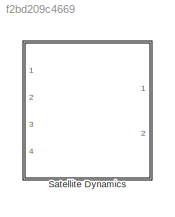
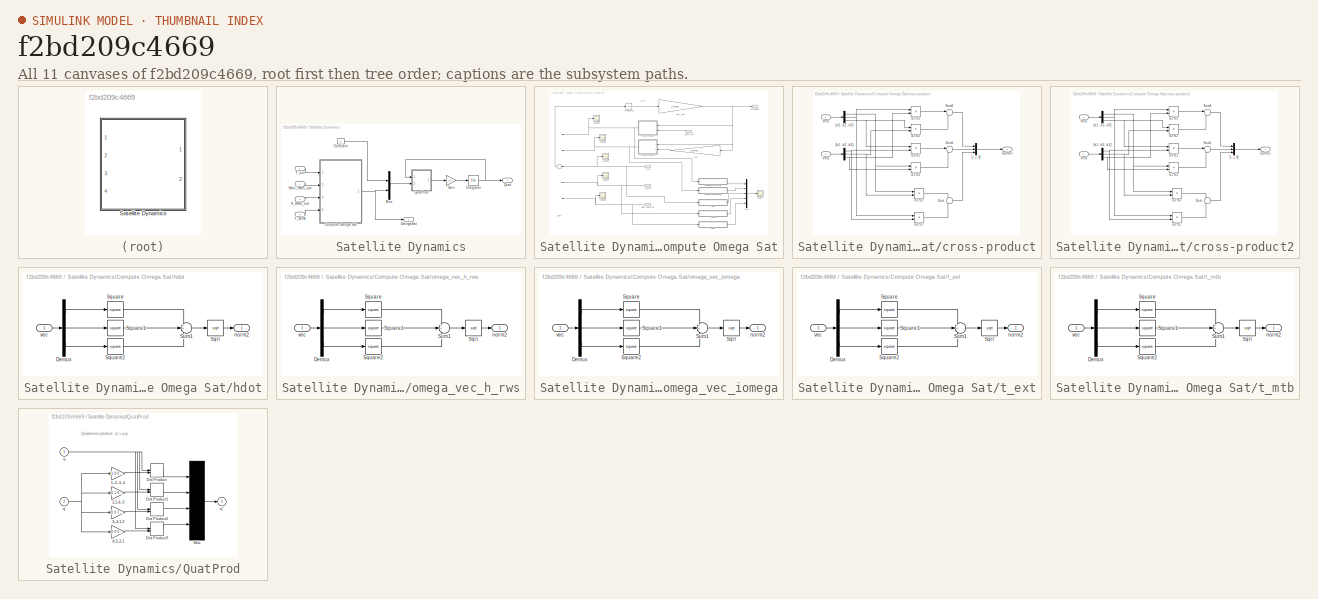
[diagram: thumbnail index - all 11 canvases of the model, root first then tree order]
MODEL slx_f2bd209c4669
KIND library
CONFIG AbsTol = auto
CONFIG EnableMultiTasking = off
CONFIG FixedStep = auto
CONFIG MaxStep = auto
CONFIG MinStep = auto
CONFIG RelTol = 1e-3
CONFIG SampleTimeConstraint = Unconstrained
CONFIG Solver = ode45
CONFIG SolverName = ode45
CONFIG StartTime = 0.0
CONFIG StopTime = 10.0
BLOCK [SubSystem] Satellite Dynamics
  Ports = [4, 2]
  RequestExecContextInheritance = off
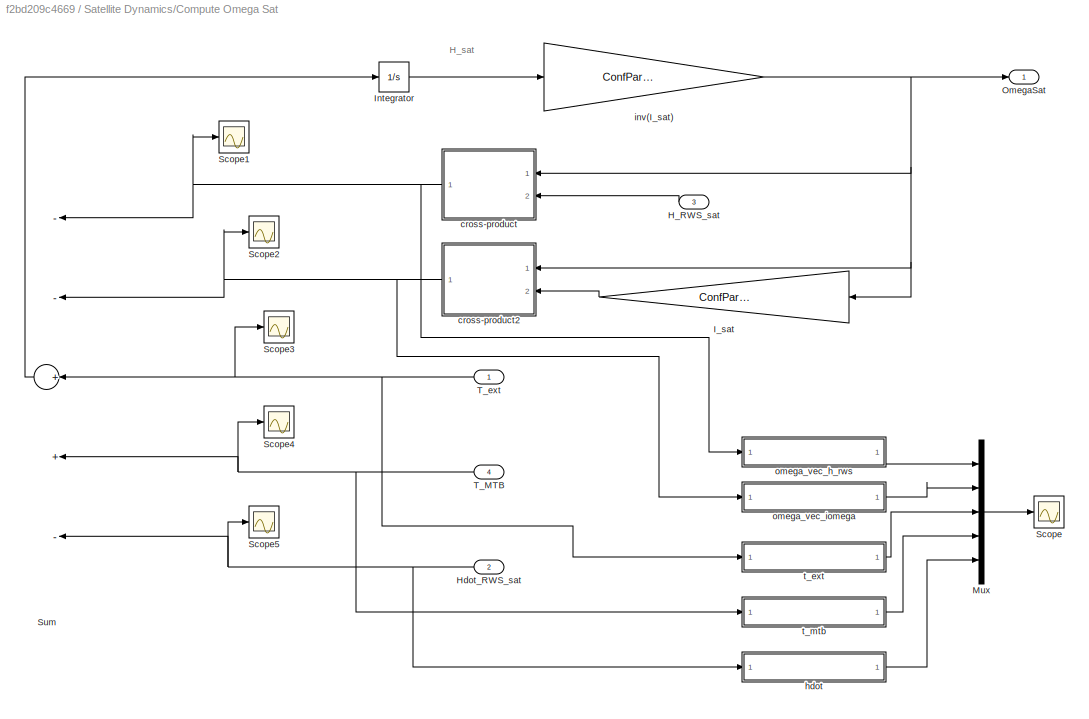
BLOCK [SubSystem] Satellite Dynamics/Compute Omega Sat
  Ports = [4, 1]
  RequestExecContextInheritance = off
BLOCK [Inport] Satellite Dynamics/Compute Omega Sat/H_RWS_sat
  IconDisplay = Port number
  Port = 3
BLOCK [Inport] Satellite Dynamics/Compute Omega Sat/Hdot_RWS_sat
  IconDisplay = Port number
  Port = 2
BLOCK [Gain] Satellite Dynamics/Compute Omega Sat/I_sat
  Gain = ConfParam.confSatFeatures.I_sat
  Multiplication = Matrix(K*u)
  OutDataTypeStr = Inherit: Inherit via internal rule
  ParamDataTypeStr = Inherit: Inherit via internal rule
  SaturateOnIntegerOverflow = off
BLOCK [Integrator] Satellite Dynamics/Compute Omega Sat/Integrator
  InitialCondition = ConfParam.confSatFeatures.I_sat*ConfParam.confSatDyn.InitOmega_sat
  Ports = [1, 1]
BLOCK [Mux] Satellite Dynamics/Compute Omega Sat/Mux
  DisplayOption = bar
  Inputs = 5
  Ports = [5, 1]
BLOCK [Outport] Satellite Dynamics/Compute Omega Sat/OmegaSat
  IconDisplay = Port number
BLOCK [Scope] Satellite Dynamics/Compute Omega Sat/Scope
  Floating = off
  NumInputPorts = 1
  Ports = [1]
  ScopeSpecificationString = Simulink.scopes.TimeScopeBlockCfg('CurrentConfiguration', extmgr.ConfigurationSet(extmgr.Configuration('Core','General UI',true),extmgr.Configuration('Core','Source UI',true),extmgr.Configuration('Sources','WiredSimulink',true),extmgr.Configuration('Visuals','Time Domain',true,'SerializedDisplays',{struct('MinYLimReal','-0.00008','MaxYLimReal','0.00068','YLabelReal','','MinYLimMag','0.00000','MaxY...<+1405ch>
BLOCK [Scope] Satellite Dynamics/Compute Omega Sat/Scope1
  Floating = off
  NumInputPorts = 1
  Ports = [1]
  ScopeSpecificationString = Simulink.scopes.TimeScopeBlockCfg('CurrentConfiguration', extmgr.ConfigurationSet(extmgr.Configuration('Core','General UI',true),extmgr.Configuration('Core','Source UI',true),extmgr.Configuration('Sources','WiredSimulink',true,'DataLoggingVariableName','ScopeData1'),extmgr.Configuration('Visuals','Time Domain',true,'SerializedDisplays',{struct('MinYLimReal','-0.000048','MaxYLimReal','0.00005','YLa...<+1442ch>
BLOCK [Scope] Satellite Dynamics/Compute Omega Sat/Scope2
  Floating = off
  NumInputPorts = 1
  Ports = [1]
  ScopeSpecificationString = Simulink.scopes.TimeScopeBlockCfg('CurrentConfiguration', extmgr.ConfigurationSet(extmgr.Configuration('Core','General UI',true),extmgr.Configuration('Core','Source UI',true),extmgr.Configuration('Sources','WiredSimulink',true,'DataLoggingVariableName','ScopeData2'),extmgr.Configuration('Visuals','Time Domain',true,'SerializedDisplays',{struct('MinYLimReal','-0.00009','MaxYLimReal','0.00009','YLab...<+1441ch>
BLOCK [Scope] Satellite Dynamics/Compute Omega Sat/Scope3
  Floating = off
  NumInputPorts = 1
  Ports = [1]
  ScopeSpecificationString = Simulink.scopes.TimeScopeBlockCfg('CurrentConfiguration', extmgr.ConfigurationSet(extmgr.Configuration('Core','General UI',true),extmgr.Configuration('Core','Source UI',true),extmgr.Configuration('Sources','WiredSimulink',true,'DataLoggingVariableName','ScopeData3'),extmgr.Configuration('Visuals','Time Domain',true,'SerializedDisplays',{struct('MinYLimReal','-0.000007','MaxYLimReal','0.000007','YL...<+1422ch>
BLOCK [Scope] Satellite Dynamics/Compute Omega Sat/Scope4
  Floating = off
  NumInputPorts = 1
  Ports = [1]
  ScopeSpecificationString = Simulink.scopes.TimeScopeBlockCfg('CurrentConfiguration', extmgr.ConfigurationSet(extmgr.Configuration('Core','General UI',true),extmgr.Configuration('Core','Source UI',true),extmgr.Configuration('Sources','WiredSimulink',true,'DataLoggingVariableName','ScopeData4'),extmgr.Configuration('Visuals','Time Domain',true,'SerializedDisplays',{struct('MinYLimReal','-0.00001','MaxYLimReal','0.00001','YLab...<+1416ch>
BLOCK [Scope] Satellite Dynamics/Compute Omega Sat/Scope5
  Floating = off
  NumInputPorts = 1
  Ports = [1]
  ScopeSpecificationString = Simulink.scopes.TimeScopeBlockCfg('CurrentConfiguration', extmgr.ConfigurationSet(extmgr.Configuration('Core','General UI',true),extmgr.Configuration('Core','Source UI',true),extmgr.Configuration('Sources','WiredSimulink',true,'DataLoggingVariableName','ScopeData5'),extmgr.Configuration('Visuals','Time Domain',true,'SerializedDisplays',{struct('MinYLimReal','-0.00075','MaxYLimReal','0.00075','YLab...<+1458ch>
BLOCK [Sum] Satellite Dynamics/Compute Omega Sat/Sum
  InputSameDT = off
  Inputs = --++-
  OutDataTypeStr = Inherit: Inherit via internal rule
  Ports = [5, 1]
  SaturateOnIntegerOverflow = off
BLOCK [Inport] Satellite Dynamics/Compute Omega Sat/T_MTB
  IconDisplay = Port number
  Port = 4
BLOCK [Inport] Satellite Dynamics/Compute Omega Sat/T_ext
  IconDisplay = Port number
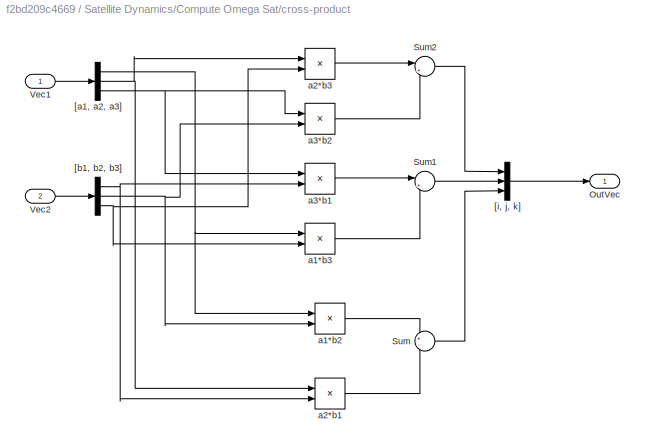
BLOCK [SubSystem] Satellite Dynamics/Compute Omega Sat/cross-product
  Ports = [2, 1]
  RequestExecContextInheritance = off
BLOCK [Outport] Satellite Dynamics/Compute Omega Sat/cross-product/OutVec
  IconDisplay = Port number
BLOCK [Sum] Satellite Dynamics/Compute Omega Sat/cross-product/Sum
  IconShape = round
  InputSameDT = off
  Inputs = +-
  OutDataTypeStr = Inherit: Inherit via internal rule
  Ports = [2, 1]
  SaturateOnIntegerOverflow = off
BLOCK [Sum] Satellite Dynamics/Compute Omega Sat/cross-product/Sum1
  IconShape = round
  InputSameDT = off
  Inputs = |+-
  OutDataTypeStr = Inherit: Inherit via internal rule
  Ports = [2, 1]
  SaturateOnIntegerOverflow = off
BLOCK [Sum] Satellite Dynamics/Compute Omega Sat/cross-product/Sum2
  IconShape = round
  InputSameDT = off
  Inputs = |+-
  OutDataTypeStr = Inherit: Inherit via internal rule
  Ports = [2, 1]
  SaturateOnIntegerOverflow = off
BLOCK [Inport] Satellite Dynamics/Compute Omega Sat/cross-product/Vec1
  IconDisplay = Port number
BLOCK [Inport] Satellite Dynamics/Compute Omega Sat/cross-product/Vec2
  IconDisplay = Port number
  Port = 2
BLOCK [Demux] Satellite Dynamics/Compute Omega Sat/cross-product/[a1, a2, a3]
  DisplayOption = bar
  Outputs = 3
  Ports = [1, 3]
BLOCK [Demux] Satellite Dynamics/Compute Omega Sat/cross-product/[b1, b2, b3]
  DisplayOption = bar
  Outputs = 3
  Ports = [1, 3]
BLOCK [Mux] Satellite Dynamics/Compute Omega Sat/cross-product/[i, j, k]
  DisplayOption = bar
  Inputs = 3
  Ports = [3, 1]
BLOCK [Product] Satellite Dynamics/Compute Omega Sat/cross-product/a1*b2
  InputSameDT = off
  OutDataTypeStr = Inherit: Inherit via internal rule
  Ports = [2, 1]
  RndMeth = Floor
  SaturateOnIntegerOverflow = off
BLOCK [Product] Satellite Dynamics/Compute Omega Sat/cross-product/a1*b3
  InputSameDT = off
  OutDataTypeStr = Inherit: Inherit via internal rule
  Ports = [2, 1]
  RndMeth = Floor
  SaturateOnIntegerOverflow = off
BLOCK [Product] Satellite Dynamics/Compute Omega Sat/cross-product/a2*b1
  InputSameDT = off
  OutDataTypeStr = Inherit: Inherit via internal rule
  Ports = [2, 1]
  RndMeth = Floor
  SaturateOnIntegerOverflow = off
BLOCK [Product] Satellite Dynamics/Compute Omega Sat/cross-product/a2*b3
  InputSameDT = off
  OutDataTypeStr = Inherit: Inherit via internal rule
  Ports = [2, 1]
  RndMeth = Floor
  SaturateOnIntegerOverflow = off
BLOCK [Product] Satellite Dynamics/Compute Omega Sat/cross-product/a3*b1
  InputSameDT = off
  OutDataTypeStr = Inherit: Inherit via internal rule
  Ports = [2, 1]
  RndMeth = Floor
  SaturateOnIntegerOverflow = off
BLOCK [Product] Satellite Dynamics/Compute Omega Sat/cross-product/a3*b2
  InputSameDT = off
  OutDataTypeStr = Inherit: Inherit via internal rule
  Ports = [2, 1]
  RndMeth = Floor
  SaturateOnIntegerOverflow = off
BLOCK [SubSystem] Satellite Dynamics/Compute Omega Sat/cross-product2
  Ports = [2, 1]
  RequestExecContextInheritance = off
BLOCK [Outport] Satellite Dynamics/Compute Omega Sat/cross-product2/OutVec
  IconDisplay = Port number
BLOCK [Sum] Satellite Dynamics/Compute Omega Sat/cross-product2/Sum
  IconShape = round
  InputSameDT = off
  Inputs = +-
  OutDataTypeStr = Inherit: Inherit via internal rule
  Ports = [2, 1]
  SaturateOnIntegerOverflow = off
BLOCK [Sum] Satellite Dynamics/Compute Omega Sat/cross-product2/Sum1
  IconShape = round
  InputSameDT = off
  Inputs = |+-
  OutDataTypeStr = Inherit: Inherit via internal rule
  Ports = [2, 1]
  SaturateOnIntegerOverflow = off
BLOCK [Sum] Satellite Dynamics/Compute Omega Sat/cross-product2/Sum2
  IconShape = round
  InputSameDT = off
  Inputs = |+-
  OutDataTypeStr = Inherit: Inherit via internal rule
  Ports = [2, 1]
  SaturateOnIntegerOverflow = off
BLOCK [Inport] Satellite Dynamics/Compute Omega Sat/cross-product2/Vec1
  IconDisplay = Port number
BLOCK [Inport] Satellite Dynamics/Compute Omega Sat/cross-product2/Vec2
  IconDisplay = Port number
  Port = 2
BLOCK [Demux] Satellite Dynamics/Compute Omega Sat/cross-product2/[a1, a2, a3]
  DisplayOption = bar
  Outputs = 3
  Ports = [1, 3]
BLOCK [Demux] Satellite Dynamics/Compute Omega Sat/cross-product2/[b1, b2, b3]
  DisplayOption = bar
  Outputs = 3
  Ports = [1, 3]
BLOCK [Mux] Satellite Dynamics/Compute Omega Sat/cross-product2/[i, j, k]
  DisplayOption = bar
  Inputs = 3
  Ports = [3, 1]
BLOCK [Product] Satellite Dynamics/Compute Omega Sat/cross-product2/a1*b2
  InputSameDT = off
  OutDataTypeStr = Inherit: Inherit via internal rule
  Ports = [2, 1]
  RndMeth = Floor
  SaturateOnIntegerOverflow = off
BLOCK [Product] Satellite Dynamics/Compute Omega Sat/cross-product2/a1*b3
  InputSameDT = off
  OutDataTypeStr = Inherit: Inherit via internal rule
  Ports = [2, 1]
  RndMeth = Floor
  SaturateOnIntegerOverflow = off
BLOCK [Product] Satellite Dynamics/Compute Omega Sat/cross-product2/a2*b1
  InputSameDT = off
  OutDataTypeStr = Inherit: Inherit via internal rule
  Ports = [2, 1]
  RndMeth = Floor
  SaturateOnIntegerOverflow = off
BLOCK [Product] Satellite Dynamics/Compute Omega Sat/cross-product2/a2*b3
  InputSameDT = off
  OutDataTypeStr = Inherit: Inherit via internal rule
  Ports = [2, 1]
  RndMeth = Floor
  SaturateOnIntegerOverflow = off
BLOCK [Product] Satellite Dynamics/Compute Omega Sat/cross-product2/a3*b1
  InputSameDT = off
  OutDataTypeStr = Inherit: Inherit via internal rule
  Ports = [2, 1]
  RndMeth = Floor
  SaturateOnIntegerOverflow = off
BLOCK [Product] Satellite Dynamics/Compute Omega Sat/cross-product2/a3*b2
  InputSameDT = off
  OutDataTypeStr = Inherit: Inherit via internal rule
  Ports = [2, 1]
  RndMeth = Floor
  SaturateOnIntegerOverflow = off
BLOCK [SubSystem] Satellite Dynamics/Compute Omega Sat/hdot
  Ports = [1, 1]
  RequestExecContextInheritance = off
BLOCK [Demux] Satellite Dynamics/Compute Omega Sat/hdot/Demux
  DisplayOption = bar
  Outputs = 3
  Ports = [1, 3]
BLOCK [Sqrt] Satellite Dynamics/Compute Omega Sat/hdot/Sqrt
BLOCK [Math] Satellite Dynamics/Compute Omega Sat/hdot/Square
  Operator = square
  Ports = [1, 1]
BLOCK [Math] Satellite Dynamics/Compute Omega Sat/hdot/Square1
  Operator = square
  Ports = [1, 1]
BLOCK [Math] Satellite Dynamics/Compute Omega Sat/hdot/Square2
  Operator = square
  Ports = [1, 1]
BLOCK [Sum] Satellite Dynamics/Compute Omega Sat/hdot/Sum1
  IconShape = round
  InputSameDT = off
  Inputs = 3
  OutDataTypeStr = Inherit: Inherit via internal rule
  Ports = [3, 1]
  SaturateOnIntegerOverflow = off
BLOCK [Outport] Satellite Dynamics/Compute Omega Sat/hdot/norm2
  IconDisplay = Port number
BLOCK [Inport] Satellite Dynamics/Compute Omega Sat/hdot/vec
  IconDisplay = Port number
BLOCK [Gain] Satellite Dynamics/Compute Omega Sat/inv(I_sat)
  Gain = ConfParam.confSatDyn.invI_sat
  Multiplication = Matrix(K*u)
  OutDataTypeStr = Inherit: Inherit via internal rule
  ParamDataTypeStr = Inherit: Inherit via internal rule
  SaturateOnIntegerOverflow = off
BLOCK [SubSystem] Satellite Dynamics/Compute Omega Sat/omega_vec_h_rws
  Ports = [1, 1]
  RequestExecContextInheritance = off
BLOCK [Demux] Satellite Dynamics/Compute Omega Sat/omega_vec_h_rws/Demux
  DisplayOption = bar
  Outputs = 3
  Ports = [1, 3]
BLOCK [Sqrt] Satellite Dynamics/Compute Omega Sat/omega_vec_h_rws/Sqrt
BLOCK [Math] Satellite Dynamics/Compute Omega Sat/omega_vec_h_rws/Square
  Operator = square
  Ports = [1, 1]
BLOCK [Math] Satellite Dynamics/Compute Omega Sat/omega_vec_h_rws/Square1
  Operator = square
  Ports = [1, 1]
BLOCK [Math] Satellite Dynamics/Compute Omega Sat/omega_vec_h_rws/Square2
  Operator = square
  Ports = [1, 1]
BLOCK [Sum] Satellite Dynamics/Compute Omega Sat/omega_vec_h_rws/Sum1
  IconShape = round
  InputSameDT = off
  Inputs = 3
  OutDataTypeStr = Inherit: Inherit via internal rule
  Ports = [3, 1]
  SaturateOnIntegerOverflow = off
BLOCK [Outport] Satellite Dynamics/Compute Omega Sat/omega_vec_h_rws/norm2
  IconDisplay = Port number
BLOCK [Inport] Satellite Dynamics/Compute Omega Sat/omega_vec_h_rws/vec
  IconDisplay = Port number
BLOCK [SubSystem] Satellite Dynamics/Compute Omega Sat/omega_vec_iomega
  Ports = [1, 1]
  RequestExecContextInheritance = off
BLOCK [Demux] Satellite Dynamics/Compute Omega Sat/omega_vec_iomega/Demux
  DisplayOption = bar
  Outputs = 3
  Ports = [1, 3]
BLOCK [Sqrt] Satellite Dynamics/Compute Omega Sat/omega_vec_iomega/Sqrt
BLOCK [Math] Satellite Dynamics/Compute Omega Sat/omega_vec_iomega/Square
  Operator = square
  Ports = [1, 1]
BLOCK [Math] Satellite Dynamics/Compute Omega Sat/omega_vec_iomega/Square1
  Operator = square
  Ports = [1, 1]
BLOCK [Math] Satellite Dynamics/Compute Omega Sat/omega_vec_iomega/Square2
  Operator = square
  Ports = [1, 1]
BLOCK [Sum] Satellite Dynamics/Compute Omega Sat/omega_vec_iomega/Sum1
  IconShape = round
  InputSameDT = off
  Inputs = 3
  OutDataTypeStr = Inherit: Inherit via internal rule
  Ports = [3, 1]
  SaturateOnIntegerOverflow = off
BLOCK [Outport] Satellite Dynamics/Compute Omega Sat/omega_vec_iomega/norm2
  IconDisplay = Port number
BLOCK [Inport] Satellite Dynamics/Compute Omega Sat/omega_vec_iomega/vec
  IconDisplay = Port number
BLOCK [SubSystem] Satellite Dynamics/Compute Omega Sat/t_ext
  Ports = [1, 1]
  RequestExecContextInheritance = off
BLOCK [Demux] Satellite Dynamics/Compute Omega Sat/t_ext/Demux
  DisplayOption = bar
  Outputs = 3
  Ports = [1, 3]
BLOCK [Sqrt] Satellite Dynamics/Compute Omega Sat/t_ext/Sqrt
BLOCK [Math] Satellite Dynamics/Compute Omega Sat/t_ext/Square
  Operator = square
  Ports = [1, 1]
BLOCK [Math] Satellite Dynamics/Compute Omega Sat/t_ext/Square1
  Operator = square
  Ports = [1, 1]
BLOCK [Math] Satellite Dynamics/Compute Omega Sat/t_ext/Square2
  Operator = square
  Ports = [1, 1]
BLOCK [Sum] Satellite Dynamics/Compute Omega Sat/t_ext/Sum1
  IconShape = round
  InputSameDT = off
  Inputs = 3
  OutDataTypeStr = Inherit: Inherit via internal rule
  Ports = [3, 1]
  SaturateOnIntegerOverflow = off
BLOCK [Outport] Satellite Dynamics/Compute Omega Sat/t_ext/norm2
  IconDisplay = Port number
BLOCK [Inport] Satellite Dynamics/Compute Omega Sat/t_ext/vec
  IconDisplay = Port number
BLOCK [SubSystem] Satellite Dynamics/Compute Omega Sat/t_mtb
  Ports = [1, 1]
  RequestExecContextInheritance = off
BLOCK [Demux] Satellite Dynamics/Compute Omega Sat/t_mtb/Demux
  DisplayOption = bar
  Outputs = 3
  Ports = [1, 3]
BLOCK [Sqrt] Satellite Dynamics/Compute Omega Sat/t_mtb/Sqrt
BLOCK [Math] Satellite Dynamics/Compute Omega Sat/t_mtb/Square
  Operator = square
  Ports = [1, 1]
BLOCK [Math] Satellite Dynamics/Compute Omega Sat/t_mtb/Square1
  Operator = square
  Ports = [1, 1]
BLOCK [Math] Satellite Dynamics/Compute Omega Sat/t_mtb/Square2
  Operator = square
  Ports = [1, 1]
BLOCK [Sum] Satellite Dynamics/Compute Omega Sat/t_mtb/Sum1
  IconShape = round
  InputSameDT = off
  Inputs = 3
  OutDataTypeStr = Inherit: Inherit via internal rule
  Ports = [3, 1]
  SaturateOnIntegerOverflow = off
BLOCK [Outport] Satellite Dynamics/Compute Omega Sat/t_mtb/norm2
  IconDisplay = Port number
BLOCK [Inport] Satellite Dynamics/Compute Omega Sat/t_mtb/vec
  IconDisplay = Port number
BLOCK [Constant] Satellite Dynamics/Constant
  Value = 0
BLOCK [Gain] Satellite Dynamics/Gain
  Gain = 1/2
  OutDataTypeStr = Inherit: Inherit via internal rule
  ParamDataTypeStr = Inherit: Inherit via internal rule
  SaturateOnIntegerOverflow = off
BLOCK [Inport] Satellite Dynamics/H_RWS_sat
  IconDisplay = Port number
  Port = 3
BLOCK [Inport] Satellite Dynamics/Hdot_RWS_sat
  IconDisplay = Port number
  Port = 2
BLOCK [Integrator] Satellite Dynamics/Integrator
  InitialCondition = ConfParam.confSatDyn.InitQsat
  Ports = [1, 1]
BLOCK [Mux] Satellite Dynamics/Mux
  DisplayOption = bar
  Inputs = 2
  Ports = [2, 1]
BLOCK [Outport] Satellite Dynamics/OmegaSat
  IconDisplay = Port number
  Port = 2
BLOCK [Outport] Satellite Dynamics/Qsat
  IconDisplay = Port number
BLOCK [SubSystem] Satellite Dynamics/QuatProd
  Ports = [2, 1]
  RTWFcnNameOpts = Use subsystem name
  RTWFileNameOpts = Use subsystem name
  RTWSystemCode = Reusable function
  RequestExecContextInheritance = off
  TreatAsAtomicUnit = on
BLOCK [Gain] Satellite Dynamics/QuatProd/1,-2,-3,-4
  Gain = [1 0 0 0;0 -1 0 0;0 0 -1 0;0 0 0 -1]
  Multiplication = Matrix(K*u) (u vector)
BLOCK [Gain] Satellite Dynamics/QuatProd/2,1,4,-3
  Gain = [0 1 0 0 ; 1 0 0 0 ; 0 0 0 1 ; 0 0 -1 0]
  Multiplication = Matrix(K*u) (u vector)
BLOCK [Gain] Satellite Dynamics/QuatProd/3,-4,1,2
  Gain = [0 0 1 0 ; 0 0 0 -1 ; 1 0 0 0 ; 0 1 0 0]
  Multiplication = Matrix(K*u) (u vector)
BLOCK [Gain] Satellite Dynamics/QuatProd/4,3,-2,1
  Gain = [0 0 0 1;0 0 1 0 ; 0 -1 0 0 ; 1 0 0 0]
  Multiplication = Matrix(K*u) (u vector)
BLOCK [DotProduct] Satellite Dynamics/QuatProd/Dot Product
  OutDataTypeStr = Inherit: Inherit via internal rule
BLOCK [DotProduct] Satellite Dynamics/QuatProd/Dot Product1
  OutDataTypeStr = Inherit: Inherit via internal rule
BLOCK [DotProduct] Satellite Dynamics/QuatProd/Dot Product2
  OutDataTypeStr = Inherit: Inherit via internal rule
BLOCK [DotProduct] Satellite Dynamics/QuatProd/Dot Product3
  OutDataTypeStr = Inherit: Inherit via internal rule
BLOCK [Mux] Satellite Dynamics/QuatProd/Mux
  Ports = [4, 1]
BLOCK [Inport] Satellite Dynamics/QuatProd/q
  IconDisplay = Port number
  OutDataTypeStr = double
  PortDimensions = 4
BLOCK [Outport] Satellite Dynamics/QuatProd/q"
  IconDisplay = Port number
  InitialOutput = 0
  OutDataTypeStr = double
  PortDimensions = 4
BLOCK [Inport] Satellite Dynamics/QuatProd/q'
  IconDisplay = Port number
  OutDataTypeStr = double
  Port = 2
  PortDimensions = 4
BLOCK [Inport] Satellite Dynamics/T_MTB
  IconDisplay = Port number
  Port = 4
BLOCK [Inport] Satellite Dynamics/T_ext
  IconDisplay = Port number
ANNOTATION Satellite Dynamics/Compute Omega Sat: H_sat
ANNOTATION Satellite Dynamics/QuatProd: Quaternion product : q" = q.q'
LINE Satellite Dynamics/Compute Omega Sat/H_RWS_sat:1 -> Satellite Dynamics/Compute Omega Sat/cross-product:2
NET Satellite Dynamics/Compute Omega Sat/Hdot_RWS_sat:1 -> Satellite Dynamics/Compute Omega Sat/Scope5:1, Satellite Dynamics/Compute Omega Sat/Sum:5, Satellite Dynamics/Compute Omega Sat/hdot:1
LINE Satellite Dynamics/Compute Omega Sat/I_sat:1 -> Satellite Dynamics/Compute Omega Sat/cross-product2:2
LINE Satellite Dynamics/Compute Omega Sat/Integrator:1 -> Satellite Dynamics/Compute Omega Sat/inv(I_sat):1
LINE Satellite Dynamics/Compute Omega Sat/Mux:1 -> Satellite Dynamics/Compute Omega Sat/Scope:1
LINE Satellite Dynamics/Compute Omega Sat/Sum:1 -> Satellite Dynamics/Compute Omega Sat/Integrator:1
NET Satellite Dynamics/Compute Omega Sat/T_MTB:1 -> Satellite Dynamics/Compute Omega Sat/Scope4:1, Satellite Dynamics/Compute Omega Sat/Sum:4, Satellite Dynamics/Compute Omega Sat/t_mtb:1
NET Satellite Dynamics/Compute Omega Sat/T_ext:1 -> Satellite Dynamics/Compute Omega Sat/Scope3:1, Satellite Dynamics/Compute Omega Sat/Sum:3, Satellite Dynamics/Compute Omega Sat/t_ext:1
LINE Satellite Dynamics/Compute Omega Sat/cross-product/Sum1:1 -> Satellite Dynamics/Compute Omega Sat/cross-product/[i, j, k]:2
LINE Satellite Dynamics/Compute Omega Sat/cross-product/Sum2:1 -> Satellite Dynamics/Compute Omega Sat/cross-product/[i, j, k]:1
LINE Satellite Dynamics/Compute Omega Sat/cross-product/Sum:1 -> Satellite Dynamics/Compute Omega Sat/cross-product/[i, j, k]:3
LINE Satellite Dynamics/Compute Omega Sat/cross-product/Vec1:1 -> Satellite Dynamics/Compute Omega Sat/cross-product/[a1, a2, a3]:1
LINE Satellite Dynamics/Compute Omega Sat/cross-product/Vec2:1 -> Satellite Dynamics/Compute Omega Sat/cross-product/[b1, b2, b3]:1
NET Satellite Dynamics/Compute Omega Sat/cross-product/[a1, a2, a3]:1 -> Satellite Dynamics/Compute Omega Sat/cross-product/a1*b2:1, Satellite Dynamics/Compute Omega Sat/cross-product/a1*b3:1
NET Satellite Dynamics/Compute Omega Sat/cross-product/[a1, a2, a3]:2 -> Satellite Dynamics/Compute Omega Sat/cross-product/a2*b1:1, Satellite Dynamics/Compute Omega Sat/cross-product/a2*b3:1
NET Satellite Dynamics/Compute Omega Sat/cross-product/[a1, a2, a3]:3 -> Satellite Dynamics/Compute Omega Sat/cross-product/a3*b1:1, Satellite Dynamics/Compute Omega Sat/cross-product/a3*b2:1
NET Satellite Dynamics/Compute Omega Sat/cross-product/[b1, b2, b3]:1 -> Satellite Dynamics/Compute Omega Sat/cross-product/a2*b1:2, Satellite Dynamics/Compute Omega Sat/cross-product/a3*b1:2
NET Satellite Dynamics/Compute Omega Sat/cross-product/[b1, b2, b3]:2 -> Satellite Dynamics/Compute Omega Sat/cross-product/a1*b2:2, Satellite Dynamics/Compute Omega Sat/cross-product/a3*b2:2
NET Satellite Dynamics/Compute Omega Sat/cross-product/[b1, b2, b3]:3 -> Satellite Dynamics/Compute Omega Sat/cross-product/a1*b3:2, Satellite Dynamics/Compute Omega Sat/cross-product/a2*b3:2
LINE Satellite Dynamics/Compute Omega Sat/cross-product/[i, j, k]:1 -> Satellite Dynamics/Compute Omega Sat/cross-product/OutVec:1
LINE Satellite Dynamics/Compute Omega Sat/cross-product/a1*b2:1 -> Satellite Dynamics/Compute Omega Sat/cross-product/Sum:1
LINE Satellite Dynamics/Compute Omega Sat/cross-product/a1*b3:1 -> Satellite Dynamics/Compute Omega Sat/cross-product/Sum1:2
LINE Satellite Dynamics/Compute Omega Sat/cross-product/a2*b1:1 -> Satellite Dynamics/Compute Omega Sat/cross-product/Sum:2
LINE Satellite Dynamics/Compute Omega Sat/cross-product/a2*b3:1 -> Satellite Dynamics/Compute Omega Sat/cross-product/Sum2:1
LINE Satellite Dynamics/Compute Omega Sat/cross-product/a3*b1:1 -> Satellite Dynamics/Compute Omega Sat/cross-product/Sum1:1
LINE Satellite Dynamics/Compute Omega Sat/cross-product/a3*b2:1 -> Satellite Dynamics/Compute Omega Sat/cross-product/Sum2:2
LINE Satellite Dynamics/Compute Omega Sat/cross-product2/Sum1:1 -> Satellite Dynamics/Compute Omega Sat/cross-product2/[i, j, k]:2
LINE Satellite Dynamics/Compute Omega Sat/cross-product2/Sum2:1 -> Satellite Dynamics/Compute Omega Sat/cross-product2/[i, j, k]:1
LINE Satellite Dynamics/Compute Omega Sat/cross-product2/Sum:1 -> Satellite Dynamics/Compute Omega Sat/cross-product2/[i, j, k]:3
LINE Satellite Dynamics/Compute Omega Sat/cross-product2/Vec1:1 -> Satellite Dynamics/Compute Omega Sat/cross-product2/[a1, a2, a3]:1
LINE Satellite Dynamics/Compute Omega Sat/cross-product2/Vec2:1 -> Satellite Dynamics/Compute Omega Sat/cross-product2/[b1, b2, b3]:1
NET Satellite Dynamics/Compute Omega Sat/cross-product2/[a1, a2, a3]:1 -> Satellite Dynamics/Compute Omega Sat/cross-product2/a1*b2:1, Satellite Dynamics/Compute Omega Sat/cross-product2/a1*b3:1
NET Satellite Dynamics/Compute Omega Sat/cross-product2/[a1, a2, a3]:2 -> Satellite Dynamics/Compute Omega Sat/cross-product2/a2*b1:1, Satellite Dynamics/Compute Omega Sat/cross-product2/a2*b3:1
NET Satellite Dynamics/Compute Omega Sat/cross-product2/[a1, a2, a3]:3 -> Satellite Dynamics/Compute Omega Sat/cross-product2/a3*b1:1, Satellite Dynamics/Compute Omega Sat/cross-product2/a3*b2:1
NET Satellite Dynamics/Compute Omega Sat/cross-product2/[b1, b2, b3]:1 -> Satellite Dynamics/Compute Omega Sat/cross-product2/a2*b1:2, Satellite Dynamics/Compute Omega Sat/cross-product2/a3*b1:2
NET Satellite Dynamics/Compute Omega Sat/cross-product2/[b1, b2, b3]:2 -> Satellite Dynamics/Compute Omega Sat/cross-product2/a1*b2:2, Satellite Dynamics/Compute Omega Sat/cross-product2/a3*b2:2
NET Satellite Dynamics/Compute Omega Sat/cross-product2/[b1, b2, b3]:3 -> Satellite Dynamics/Compute Omega Sat/cross-product2/a1*b3:2, Satellite Dynamics/Compute Omega Sat/cross-product2/a2*b3:2
LINE Satellite Dynamics/Compute Omega Sat/cross-product2/[i, j, k]:1 -> Satellite Dynamics/Compute Omega Sat/cross-product2/OutVec:1
LINE Satellite Dynamics/Compute Omega Sat/cross-product2/a1*b2:1 -> Satellite Dynamics/Compute Omega Sat/cross-product2/Sum:1
LINE Satellite Dynamics/Compute Omega Sat/cross-product2/a1*b3:1 -> Satellite Dynamics/Compute Omega Sat/cross-product2/Sum1:2
LINE Satellite Dynamics/Compute Omega Sat/cross-product2/a2*b1:1 -> Satellite Dynamics/Compute Omega Sat/cross-product2/Sum:2
LINE Satellite Dynamics/Compute Omega Sat/cross-product2/a2*b3:1 -> Satellite Dynamics/Compute Omega Sat/cross-product2/Sum2:1
LINE Satellite Dynamics/Compute Omega Sat/cross-product2/a3*b1:1 -> Satellite Dynamics/Compute Omega Sat/cross-product2/Sum1:1
LINE Satellite Dynamics/Compute Omega Sat/cross-product2/a3*b2:1 -> Satellite Dynamics/Compute Omega Sat/cross-product2/Sum2:2
NET Satellite Dynamics/Compute Omega Sat/cross-product2:1 -> Satellite Dynamics/Compute Omega Sat/Scope2:1, Satellite Dynamics/Compute Omega Sat/Sum:2, Satellite Dynamics/Compute Omega Sat/omega_vec_iomega:1
NET Satellite Dynamics/Compute Omega Sat/cross-product:1 -> Satellite Dynamics/Compute Omega Sat/Scope1:1, Satellite Dynamics/Compute Omega Sat/Sum:1, Satellite Dynamics/Compute Omega Sat/omega_vec_h_rws:1
LINE Satellite Dynamics/Compute Omega Sat/hdot/Demux:1 -> Satellite Dynamics/Compute Omega Sat/hdot/Square:1
LINE Satellite Dynamics/Compute Omega Sat/hdot/Demux:2 -> Satellite Dynamics/Compute Omega Sat/hdot/Square1:1
LINE Satellite Dynamics/Compute Omega Sat/hdot/Demux:3 -> Satellite Dynamics/Compute Omega Sat/hdot/Square2:1
LINE Satellite Dynamics/Compute Omega Sat/hdot/Sqrt:1 -> Satellite Dynamics/Compute Omega Sat/hdot/norm2:1
LINE Satellite Dynamics/Compute Omega Sat/hdot/Square1:1 -> Satellite Dynamics/Compute Omega Sat/hdot/Sum1:2
LINE Satellite Dynamics/Compute Omega Sat/hdot/Square2:1 -> Satellite Dynamics/Compute Omega Sat/hdot/Sum1:3
LINE Satellite Dynamics/Compute Omega Sat/hdot/Square:1 -> Satellite Dynamics/Compute Omega Sat/hdot/Sum1:1
LINE Satellite Dynamics/Compute Omega Sat/hdot/Sum1:1 -> Satellite Dynamics/Compute Omega Sat/hdot/Sqrt:1
LINE Satellite Dynamics/Compute Omega Sat/hdot/vec:1 -> Satellite Dynamics/Compute Omega Sat/hdot/Demux:1
LINE Satellite Dynamics/Compute Omega Sat/hdot:1 -> Satellite Dynamics/Compute Omega Sat/Mux:5
NET Satellite Dynamics/Compute Omega Sat/inv(I_sat):1 -> Satellite Dynamics/Compute Omega Sat/I_sat:1, Satellite Dynamics/Compute Omega Sat/OmegaSat:1, Satellite Dynamics/Compute Omega Sat/cross-product2:1, Satellite Dynamics/Compute Omega Sat/cross-product:1
LINE Satellite Dynamics/Compute Omega Sat/omega_vec_h_rws/Demux:1 -> Satellite Dynamics/Compute Omega Sat/omega_vec_h_rws/Square:1
LINE Satellite Dynamics/Compute Omega Sat/omega_vec_h_rws/Demux:2 -> Satellite Dynamics/Compute Omega Sat/omega_vec_h_rws/Square1:1
LINE Satellite Dynamics/Compute Omega Sat/omega_vec_h_rws/Demux:3 -> Satellite Dynamics/Compute Omega Sat/omega_vec_h_rws/Square2:1
LINE Satellite Dynamics/Compute Omega Sat/omega_vec_h_rws/Sqrt:1 -> Satellite Dynamics/Compute Omega Sat/omega_vec_h_rws/norm2:1
LINE Satellite Dynamics/Compute Omega Sat/omega_vec_h_rws/Square1:1 -> Satellite Dynamics/Compute Omega Sat/omega_vec_h_rws/Sum1:2
LINE Satellite Dynamics/Compute Omega Sat/omega_vec_h_rws/Square2:1 -> Satellite Dynamics/Compute Omega Sat/omega_vec_h_rws/Sum1:3
LINE Satellite Dynamics/Compute Omega Sat/omega_vec_h_rws/Square:1 -> Satellite Dynamics/Compute Omega Sat/omega_vec_h_rws/Sum1:1
LINE Satellite Dynamics/Compute Omega Sat/omega_vec_h_rws/Sum1:1 -> Satellite Dynamics/Compute Omega Sat/omega_vec_h_rws/Sqrt:1
LINE Satellite Dynamics/Compute Omega Sat/omega_vec_h_rws/vec:1 -> Satellite Dynamics/Compute Omega Sat/omega_vec_h_rws/Demux:1
LINE Satellite Dynamics/Compute Omega Sat/omega_vec_h_rws:1 -> Satellite Dynamics/Compute Omega Sat/Mux:1
LINE Satellite Dynamics/Compute Omega Sat/omega_vec_iomega/Demux:1 -> Satellite Dynamics/Compute Omega Sat/omega_vec_iomega/Square:1
LINE Satellite Dynamics/Compute Omega Sat/omega_vec_iomega/Demux:2 -> Satellite Dynamics/Compute Omega Sat/omega_vec_iomega/Square1:1
LINE Satellite Dynamics/Compute Omega Sat/omega_vec_iomega/Demux:3 -> Satellite Dynamics/Compute Omega Sat/omega_vec_iomega/Square2:1
LINE Satellite Dynamics/Compute Omega Sat/omega_vec_iomega/Sqrt:1 -> Satellite Dynamics/Compute Omega Sat/omega_vec_iomega/norm2:1
LINE Satellite Dynamics/Compute Omega Sat/omega_vec_iomega/Square1:1 -> Satellite Dynamics/Compute Omega Sat/omega_vec_iomega/Sum1:2
LINE Satellite Dynamics/Compute Omega Sat/omega_vec_iomega/Square2:1 -> Satellite Dynamics/Compute Omega Sat/omega_vec_iomega/Sum1:3
LINE Satellite Dynamics/Compute Omega Sat/omega_vec_iomega/Square:1 -> Satellite Dynamics/Compute Omega Sat/omega_vec_iomega/Sum1:1
LINE Satellite Dynamics/Compute Omega Sat/omega_vec_iomega/Sum1:1 -> Satellite Dynamics/Compute Omega Sat/omega_vec_iomega/Sqrt:1
LINE Satellite Dynamics/Compute Omega Sat/omega_vec_iomega/vec:1 -> Satellite Dynamics/Compute Omega Sat/omega_vec_iomega/Demux:1
LINE Satellite Dynamics/Compute Omega Sat/omega_vec_iomega:1 -> Satellite Dynamics/Compute Omega Sat/Mux:2
LINE Satellite Dynamics/Compute Omega Sat/t_ext/Demux:1 -> Satellite Dynamics/Compute Omega Sat/t_ext/Square:1
LINE Satellite Dynamics/Compute Omega Sat/t_ext/Demux:2 -> Satellite Dynamics/Compute Omega Sat/t_ext/Square1:1
LINE Satellite Dynamics/Compute Omega Sat/t_ext/Demux:3 -> Satellite Dynamics/Compute Omega Sat/t_ext/Square2:1
LINE Satellite Dynamics/Compute Omega Sat/t_ext/Sqrt:1 -> Satellite Dynamics/Compute Omega Sat/t_ext/norm2:1
LINE Satellite Dynamics/Compute Omega Sat/t_ext/Square1:1 -> Satellite Dynamics/Compute Omega Sat/t_ext/Sum1:2
LINE Satellite Dynamics/Compute Omega Sat/t_ext/Square2:1 -> Satellite Dynamics/Compute Omega Sat/t_ext/Sum1:3
LINE Satellite Dynamics/Compute Omega Sat/t_ext/Square:1 -> Satellite Dynamics/Compute Omega Sat/t_ext/Sum1:1
LINE Satellite Dynamics/Compute Omega Sat/t_ext/Sum1:1 -> Satellite Dynamics/Compute Omega Sat/t_ext/Sqrt:1
LINE Satellite Dynamics/Compute Omega Sat/t_ext/vec:1 -> Satellite Dynamics/Compute Omega Sat/t_ext/Demux:1
LINE Satellite Dynamics/Compute Omega Sat/t_ext:1 -> Satellite Dynamics/Compute Omega Sat/Mux:3
LINE Satellite Dynamics/Compute Omega Sat/t_mtb/Demux:1 -> Satellite Dynamics/Compute Omega Sat/t_mtb/Square:1
LINE Satellite Dynamics/Compute Omega Sat/t_mtb/Demux:2 -> Satellite Dynamics/Compute Omega Sat/t_mtb/Square1:1
LINE Satellite Dynamics/Compute Omega Sat/t_mtb/Demux:3 -> Satellite Dynamics/Compute Omega Sat/t_mtb/Square2:1
LINE Satellite Dynamics/Compute Omega Sat/t_mtb/Sqrt:1 -> Satellite Dynamics/Compute Omega Sat/t_mtb/norm2:1
LINE Satellite Dynamics/Compute Omega Sat/t_mtb/Square1:1 -> Satellite Dynamics/Compute Omega Sat/t_mtb/Sum1:2
LINE Satellite Dynamics/Compute Omega Sat/t_mtb/Square2:1 -> Satellite Dynamics/Compute Omega Sat/t_mtb/Sum1:3
LINE Satellite Dynamics/Compute Omega Sat/t_mtb/Square:1 -> Satellite Dynamics/Compute Omega Sat/t_mtb/Sum1:1
LINE Satellite Dynamics/Compute Omega Sat/t_mtb/Sum1:1 -> Satellite Dynamics/Compute Omega Sat/t_mtb/Sqrt:1
LINE Satellite Dynamics/Compute Omega Sat/t_mtb/vec:1 -> Satellite Dynamics/Compute Omega Sat/t_mtb/Demux:1
LINE Satellite Dynamics/Compute Omega Sat/t_mtb:1 -> Satellite Dynamics/Compute Omega Sat/Mux:4
NET Satellite Dynamics/Compute Omega Sat:1 -> Satellite Dynamics/Mux:2, Satellite Dynamics/OmegaSat:1
LINE Satellite Dynamics/Constant:1 -> Satellite Dynamics/Mux:1
LINE Satellite Dynamics/Gain:1 -> Satellite Dynamics/Integrator:1
LINE Satellite Dynamics/H_RWS_sat:1 -> Satellite Dynamics/Compute Omega Sat:3
LINE Satellite Dynamics/Hdot_RWS_sat:1 -> Satellite Dynamics/Compute Omega Sat:2
NET Satellite Dynamics/Integrator:1 -> Satellite Dynamics/Qsat:1, Satellite Dynamics/QuatProd:1
LINE Satellite Dynamics/Mux:1 -> Satellite Dynamics/QuatProd:2
LINE Satellite Dynamics/QuatProd/1,-2,-3,-4:1 -> Satellite Dynamics/QuatProd/Dot Product:2
LINE Satellite Dynamics/QuatProd/2,1,4,-3:1 -> Satellite Dynamics/QuatProd/Dot Product1:2
LINE Satellite Dynamics/QuatProd/3,-4,1,2:1 -> Satellite Dynamics/QuatProd/Dot Product2:2
LINE Satellite Dynamics/QuatProd/4,3,-2,1:1 -> Satellite Dynamics/QuatProd/Dot Product3:2
LINE Satellite Dynamics/QuatProd/Dot Product1:1 -> Satellite Dynamics/QuatProd/Mux:2
LINE Satellite Dynamics/QuatProd/Dot Product2:1 -> Satellite Dynamics/QuatProd/Mux:3
LINE Satellite Dynamics/QuatProd/Dot Product3:1 -> Satellite Dynamics/QuatProd/Mux:4
LINE Satellite Dynamics/QuatProd/Dot Product:1 -> Satellite Dynamics/QuatProd/Mux:1
LINE Satellite Dynamics/QuatProd/Mux:1 -> Satellite Dynamics/QuatProd/q":1
NET Satellite Dynamics/QuatProd/q':1 -> Satellite Dynamics/QuatProd/1,-2,-3,-4:1, Satellite Dynamics/QuatProd/2,1,4,-3:1, Satellite Dynamics/QuatProd/3,-4,1,2:1, Satellite Dynamics/QuatProd/4,3,-2,1:1
NET Satellite Dynamics/QuatProd/q:1 -> Satellite Dynamics/QuatProd/Dot Product1:1, Satellite Dynamics/QuatProd/Dot Product2:1, Satellite Dynamics/QuatProd/Dot Product3:1, Satellite Dynamics/QuatProd/Dot Product:1
LINE Satellite Dynamics/QuatProd:1 -> Satellite Dynamics/Gain:1
LINE Satellite Dynamics/T_MTB:1 -> Satellite Dynamics/Compute Omega Sat:4
LINE Satellite Dynamics/T_ext:1 -> Satellite Dynamics/Compute Omega Sat:1
note: NET lines group one-source signal fan-out (src -> all destinations, sorted); 1:1 wires keep LINE
